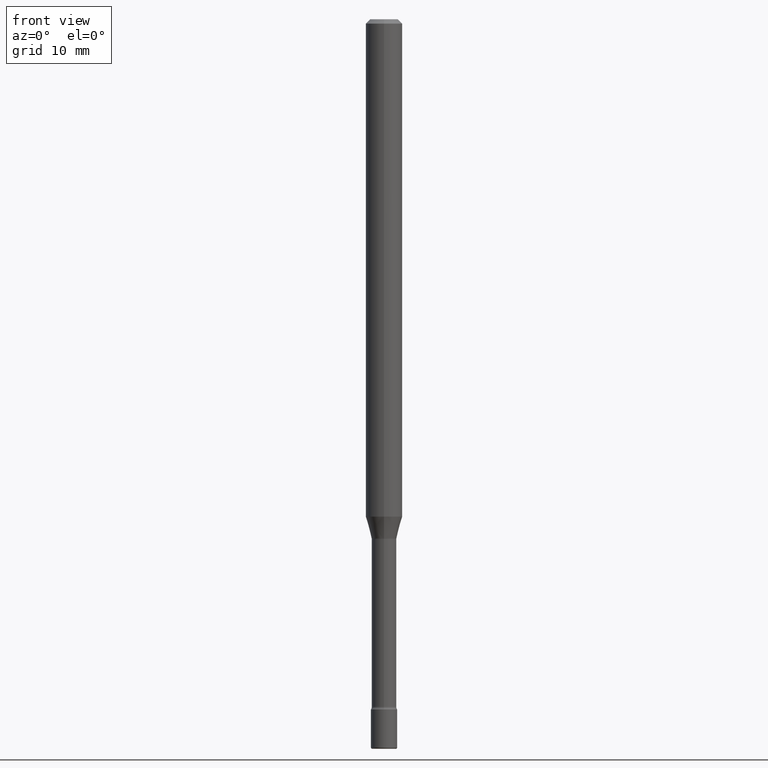
[diagram: clean part render]
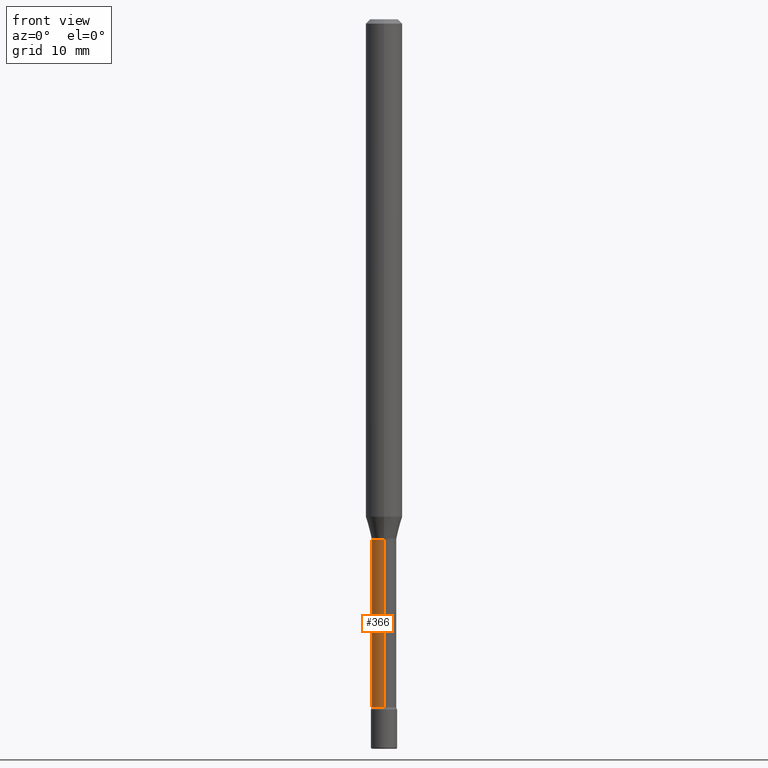
[diagram: same view with one face highlighted and labeled with its STEP entity id]
A machine part, front view. The second image highlights one B-rep face of the part: STEP entity #366.
In plain terms, the highlighted cylindrical surface (edge-blend (fillet) strip) has radius 1.0744 mm, axis along (-0, 0, 1).
Its self-contained STEP definition (entity closure, byte-faithful):
#40 = AXIS2_PLACEMENT_3D ( 'NONE', #69, #292, #208 ) ;
#43 = CARTESIAN_POINT ( 'NONE',  ( -2.953793212661290535E-16, -0.04229999999999999732, 6.257699263891009512E-16 ) ) ;
#57 = EDGE_CURVE ( 'NONE', #263, #83, #549, .T. ) ;
#60 = VECTOR ( 'NONE', #148, 39.37007874015748143 ) ;
#69 = CARTESIAN_POINT ( 'NONE',  ( 5.762271147656765204E-29, -8.227759951890936880E-15, -2.356414547187247077 ) ) ;
#83 = VERTEX_POINT ( 'NONE', #359 ) ;
#95 = EDGE_LOOP ( 'NONE', ( #207, #539, #393, #390 ) ) ;
#139 = EDGE_CURVE ( 'NONE', #490, #269, #475, .T. ) ;
#148 = DIRECTION ( 'NONE',  ( -2.445355446703953584E-29, 3.491643676072220337E-15, 1.000000000000000000 ) ) ;
#179 = CARTESIAN_POINT ( 'NONE',  ( -2.953793212660714173E-16, -0.04230000000000822685, -2.356414547187247077 ) ) ;
#187 = DIRECTION ( 'NONE',  ( -2.445355446703953584E-29, 3.491643676072220337E-15, 1.000000000000000000 ) ) ;
#188 = DIRECTION ( 'NONE',  ( -2.445355446703953584E-29, 3.491643676072220337E-15, 1.000000000000000000 ) ) ;
#194 = LINE ( 'NONE', #536, #60 ) ;
#207 = ORIENTED_EDGE ( 'NONE', *, *, #429, .F. ) ;
#208 = DIRECTION ( 'NONE',  ( -6.982962677686266711E-15, -1.000000000000000000, 6.458269488567998169E-15 ) ) ;
#213 = DIRECTION ( 'NONE',  ( -2.445355446703953584E-29, 3.491643676072220337E-15, 1.000000000000000000 ) ) ;
#234 = AXIS2_PLACEMENT_3D ( 'NONE', #368, #187, #537 ) ;
#258 = CARTESIAN_POINT ( 'NONE',  ( -1.169113584055446105E-44, 1.669184350826100908E-30, 4.780733988912460139E-16 ) ) ;
#263 = VERTEX_POINT ( 'NONE', #418 ) ;
#269 = VERTEX_POINT ( 'NONE', #179 ) ;
#275 = CYLINDRICAL_SURFACE ( 'NONE', #431, 0.04229999999999999732 ) ;
#292 = DIRECTION ( 'NONE',  ( -2.445355446703953584E-29, 3.491643676072220337E-15, 1.000000000000000000 ) ) ;
#296 = VECTOR ( 'NONE', #188, 39.37007874015748143 ) ;
#359 = CARTESIAN_POINT ( 'NONE',  ( -2.953793212660855675E-16, -0.04230000000000623539, -1.781974787463810994 ) ) ;
#366 = ADVANCED_FACE ( 'NONE', ( #480 ), #275, .T. ) ;
#368 = CARTESIAN_POINT ( 'NONE',  ( 4.357561752413750635E-29, -6.222020997568155509E-15, -1.781974787463811216 ) ) ;
#390 = ORIENTED_EDGE ( 'NONE', *, *, #57, .F. ) ;
#393 = ORIENTED_EDGE ( 'NONE', *, *, #551, .T. ) ;
#418 = CARTESIAN_POINT ( 'NONE',  ( 3.005595772265800451E-16, 0.04229999999999378701, -1.781974787463811438 ) ) ;
#429 = EDGE_CURVE ( 'NONE', #490, #263, #194, .T. ) ;
#431 = AXIS2_PLACEMENT_3D ( 'NONE', #258, #213, #571 ) ;
#437 = LINE ( 'NONE', #43, #296 ) ;
#449 = CARTESIAN_POINT ( 'NONE',  ( 3.101519041593414751E-16, 0.04229999999999176780, -2.356414547187247521 ) ) ;
#475 = CIRCLE ( 'NONE', #40, 0.04229999999999999732 ) ;
#480 = FACE_OUTER_BOUND ( 'NONE', #95, .T. ) ;
#490 = VERTEX_POINT ( 'NONE', #449 ) ;
#536 = CARTESIAN_POINT ( 'NONE',  ( 3.005595772265223103E-16, 0.04229999999999999732, 3.303768713933911753E-16 ) ) ;
#537 = DIRECTION ( 'NONE',  ( -6.982962677686265133E-15, -1.000000000000000000, 6.458269488567996591E-15 ) ) ;
#539 = ORIENTED_EDGE ( 'NONE', *, *, #139, .T. ) ;
#549 = CIRCLE ( 'NONE', #234, 0.04230000000000001120 ) ;
#551 = EDGE_CURVE ( 'NONE', #269, #83, #437, .T. ) ;
#571 = DIRECTION ( 'NONE',  ( -6.982962677686266711E-15, -1.000000000000000000, 3.491643676072218759E-15 ) ) ;